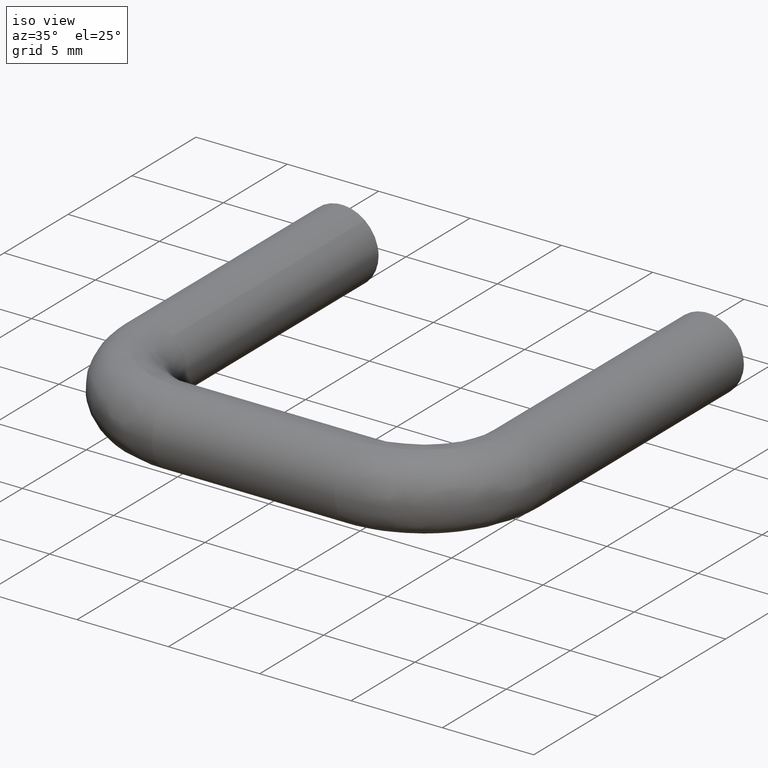
[diagram: clean part render]
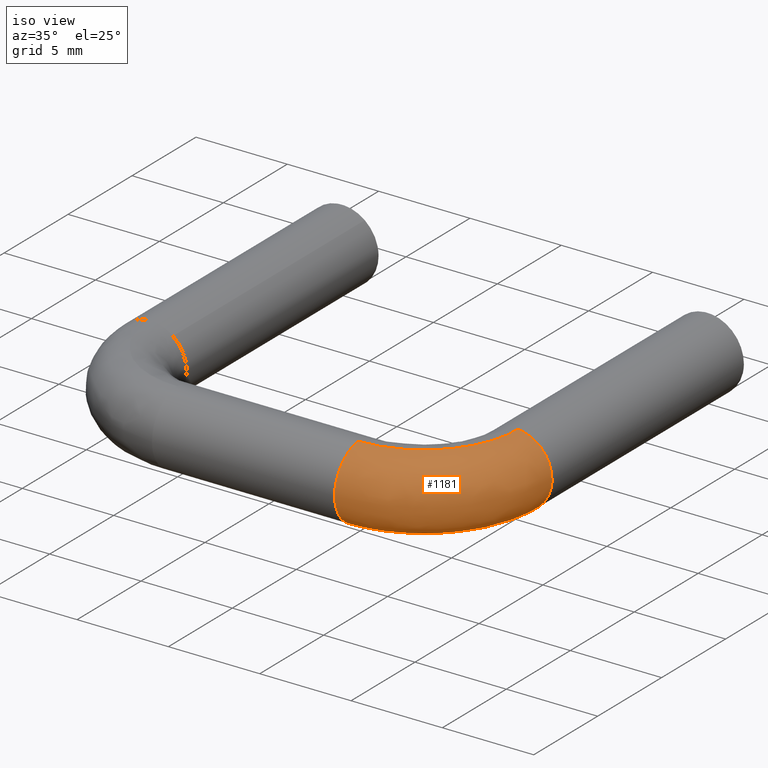
[diagram: same view with one face highlighted and labeled with its STEP entity id]
A machine part, iso view. The second image highlights one B-rep face of the part: STEP entity #1181.
In plain terms, the highlighted face is a freeform B-spline surface patch.
Its self-contained STEP definition (entity closure, byte-faithful):
#426=CARTESIAN_POINT('',(19.974867920034221,-15.000000000080220,-1.999842088405130));
#427=VERTEX_POINT('',#426);
#428=CARTESIAN_POINT('',(21.245028317143941,-15.0,-1.565217074245048));
#429=VERTEX_POINT('',#428);
#430=CARTESIAN_POINT('',(19.974867920034217,-15.000000000080220,-1.999842088405130));
#431=CARTESIAN_POINT('',(19.987433463817126,-15.000000000000005,-2.0));
#432=CARTESIAN_POINT('',(20.0,-15.0,-2.0));
#433=CARTESIAN_POINT('',(20.698430581485816,-15.000000000000004,-2.000000000000000));
#434=CARTESIAN_POINT('',(21.245028317143937,-15.000000000000002,-1.565217074245048));
#442=(BOUNDED_CURVE()B_SPLINE_CURVE(2,(#430,#431,#432,#433,#434),.UNSPECIFIED.,.F.,.U.)B_SPLINE_CURVE_WITH_KNOTS((3,2,3),(0.247784295886715,0.250000000000000,0.357863784922316),.UNSPECIFIED.)CURVE()GEOMETRIC_REPRESENTATION_ITEM()RATIONAL_B_SPLINE_CURVE((0.994854295563426,0.997404141161287,1.0,0.873629715362804,0.856305648347035))REPRESENTATION_ITEM(''));
#443=EDGE_CURVE('',#427,#429,#442,.T.);
#540=CARTESIAN_POINT('',(22.0,-15.0,0.0));
#541=VERTEX_POINT('',#540);
#542=CARTESIAN_POINT('',(21.245028317143937,-15.000000000000002,-1.565217074245048));
#543=CARTESIAN_POINT('',(21.999999999999996,-14.999999999999995,-0.964686234616793));
#544=CARTESIAN_POINT('',(22.0,-15.0,0.0));
#552=(BOUNDED_CURVE()B_SPLINE_CURVE(2,(#542,#543,#544),.UNSPECIFIED.,.F.,.U.)B_SPLINE_CURVE_WITH_KNOTS((3,3),(0.357863784922316,0.500000000000000),.UNSPECIFIED.)CURVE()GEOMETRIC_REPRESENTATION_ITEM()RATIONAL_B_SPLINE_CURVE((0.856305648347035,0.833477065823744,1.0))REPRESENTATION_ITEM(''));
#553=EDGE_CURVE('',#429,#541,#552,.T.);
#587=CARTESIAN_POINT('',(20.139466503375111,-15.000000000051781,1.995131347665190));
#588=VERTEX_POINT('',#587);
#604=CARTESIAN_POINT('',(22.0,-15.0,0.0));
#605=CARTESIAN_POINT('',(22.000000000000004,-15.0,1.865073694113004));
#606=CARTESIAN_POINT('',(20.139466503375104,-15.000000000051783,1.995131347665191));
#614=(BOUNDED_CURVE()B_SPLINE_CURVE(2,(#604,#605,#606),.UNSPECIFIED.,.F.,.U.)B_SPLINE_CURVE_WITH_KNOTS((3,3),(0.500000000000000,0.737833686496478),.UNSPECIFIED.)CURVE()GEOMETRIC_REPRESENTATION_ITEM()RATIONAL_B_SPLINE_CURVE((1.0,0.721360504079108,0.972879876305305))REPRESENTATION_ITEM(''));
#615=EDGE_CURVE('',#541,#588,#614,.T.);
#642=CARTESIAN_POINT('',(15.000000000091649,-19.974867920007419,-1.999842088404793));
#643=VERTEX_POINT('',#642);
#644=CARTESIAN_POINT('',(15.0,-21.489331918750690,-1.334874689171291));
#645=VERTEX_POINT('',#644);
#646=CARTESIAN_POINT('',(15.000000000091646,-19.974867920007423,-1.999842088404794));
#647=CARTESIAN_POINT('',(15.000000000000002,-19.987433463790317,-2.0));
#648=CARTESIAN_POINT('',(15.0,-20.0,-2.0));
#649=CARTESIAN_POINT('',(14.999999999999995,-20.893186420411176,-2.000000000000000));
#650=CARTESIAN_POINT('',(15.000000000000007,-21.489331918750693,-1.334874689171291));
#658=(BOUNDED_CURVE()B_SPLINE_CURVE(2,(#646,#647,#648,#649,#650),.UNSPECIFIED.,.F.,.U.)B_SPLINE_CURVE_WITH_KNOTS((3,2,3),(0.247784295882001,0.250000000000000,0.383246031308614),.UNSPECIFIED.)CURVE()GEOMETRIC_REPRESENTATION_ITEM()RATIONAL_B_SPLINE_CURVE((0.994854295552576,0.997404141155764,1.0,0.843892563983608,0.854190698422797))REPRESENTATION_ITEM(''));
#659=EDGE_CURVE('',#643,#645,#658,.T.);
#771=CARTESIAN_POINT('',(15.0,-22.0,0.0));
#772=VERTEX_POINT('',#771);
#773=CARTESIAN_POINT('',(15.000000000000007,-21.489331918750693,-1.334874689171291));
#774=CARTESIAN_POINT('',(14.999999999999996,-22.000000000000007,-0.765117361107702));
#775=CARTESIAN_POINT('',(15.0,-22.0,0.0));
#783=(BOUNDED_CURVE()B_SPLINE_CURVE(2,(#773,#774,#775),.UNSPECIFIED.,.F.,.U.)B_SPLINE_CURVE_WITH_KNOTS((3,3),(0.383246031308615,0.500000000000000),.UNSPECIFIED.)CURVE()GEOMETRIC_REPRESENTATION_ITEM()RATIONAL_B_SPLINE_CURVE((0.854190698422797,0.863214217202940,1.0))REPRESENTATION_ITEM(''));
#784=EDGE_CURVE('',#645,#772,#783,.T.);
#786=CARTESIAN_POINT('',(15.000000000061659,-20.139466503413331,1.995131347662519));
#787=VERTEX_POINT('',#786);
#788=CARTESIAN_POINT('',(15.0,-22.0,0.0));
#789=CARTESIAN_POINT('',(15.000000000000007,-22.0,1.865073694041360));
#790=CARTESIAN_POINT('',(15.000000000061656,-20.139466503413328,1.995131347662519));
#798=(BOUNDED_CURVE()B_SPLINE_CURVE(2,(#788,#789,#790),.UNSPECIFIED.,.F.,.U.)B_SPLINE_CURVE_WITH_KNOTS((3,3),(0.500000000000000,0.737833686489888),.UNSPECIFIED.)CURVE()GEOMETRIC_REPRESENTATION_ITEM()RATIONAL_B_SPLINE_CURVE((1.0,0.721360504086829,0.972879876291366))REPRESENTATION_ITEM(''));
#799=EDGE_CURVE('',#772,#787,#798,.T.);
#1110=CARTESIAN_POINT('',(15.000000000091644,-19.974867920007419,-1.999842088404794));
#1111=CARTESIAN_POINT('',(19.974867920072850,-19.974867920050009,-1.999842088407631));
#1112=CARTESIAN_POINT('',(19.974867920034228,-15.000000000080217,-1.999842088405130));
#1120=(BOUNDED_CURVE()B_SPLINE_CURVE(2,(#1110,#1111,#1112),.UNSPECIFIED.,.F.,.U.)B_SPLINE_CURVE_WITH_KNOTS((3,3),(-1.734750791620118,-0.265249208375109),.UNSPECIFIED.)CURVE()GEOMETRIC_REPRESENTATION_ITEM()RATIONAL_B_SPLINE_CURVE((0.889029723562874,0.628638946230026,0.889029723564566))REPRESENTATION_ITEM(''));
#1121=EDGE_CURVE('',#643,#427,#1120,.T.);
#1126=CARTESIAN_POINT('',(15.000000000061656,-20.139466503413328,1.995131347662519));
#1127=CARTESIAN_POINT('',(20.139466503047316,-20.139466503027563,1.995131347680863));
#1128=CARTESIAN_POINT('',(20.139466503375107,-15.000000000051781,1.995131347665191));
#1136=(BOUNDED_CURVE()B_SPLINE_CURVE(2,(#1126,#1127,#1128),.UNSPECIFIED.,.F.,.U.)B_SPLINE_CURVE_WITH_KNOTS((3,3),(-1.734750791633468,-0.265249208362536),.UNSPECIFIED.)CURVE()GEOMETRIC_REPRESENTATION_ITEM()RATIONAL_B_SPLINE_CURVE((0.869031711866623,0.614498216541095,0.869031711868007))REPRESENTATION_ITEM(''));
#1137=EDGE_CURVE('',#787,#588,#1136,.T.);
#1142=CARTESIAN_POINT('',(14.656021217743410,-19.934720435218058,-1.999488033019797));
#1143=CARTESIAN_POINT('',(20.330247214529276,-20.330247066208827,-1.999488033019798));
#1144=CARTESIAN_POINT('',(19.934720425646432,-14.656021080428960,-1.999488033019796));
#1145=CARTESIAN_POINT('',(14.655044537632609,-19.948731890430039,-1.999664542692802));
#1146=CARTESIAN_POINT('',(20.345381713250244,-20.345381564508664,-1.999664542692803));
#1147=CARTESIAN_POINT('',(19.948731880831232,-14.655044399928274,-1.999664542692802));
#1148=CARTESIAN_POINT('',(14.514998910677473,-21.957826790600048,-2.024974168174337));
#1149=CARTESIAN_POINT('',(22.515509207997166,-22.515508998869205,-2.024974168174337));
#1150=CARTESIAN_POINT('',(21.957826777104334,-14.514998717067693,-2.024974168174337));
#1151=CARTESIAN_POINT('',(14.513251298798460,-21.982898034807718,-0.025132079766705));
#1152=CARTESIAN_POINT('',(22.542589957830316,-22.542589747948806,-0.025132079766705));
#1153=CARTESIAN_POINT('',(21.982898021263352,-14.513251104491044,-0.025132079766705));
#1154=CARTESIAN_POINT('',(14.511600935508904,-22.006574150517817,1.863425675679395));
#1155=CARTESIAN_POINT('',(22.568163757090350,-22.568163546497214,1.863425675679394));
#1156=CARTESIAN_POINT('',(22.006574136927533,-14.511600740542663,1.863425675679395));
#1157=CARTESIAN_POINT('',(14.643619401793485,-20.112636916579117,1.996139616102529));
#1158=CARTESIAN_POINT('',(20.522424024065533,-20.522423870397528,1.996139616102528));
#1159=CARTESIAN_POINT('',(20.112636906662392,-14.643619259528290,1.996139616102529));
#1160=CARTESIAN_POINT('',(14.644616875263736,-20.098327159782581,1.997142344269510));
#1161=CARTESIAN_POINT('',(20.506967314347801,-20.506967161109902,1.997142344269509));
#1162=CARTESIAN_POINT('',(20.098327149893620,-14.644616733396729,1.997142344269509));
#1170=(BOUNDED_SURFACE()B_SPLINE_SURFACE(2,2,((#1142,#1145,#1148,#1151,#1154,#1157,#1160),(#1143,#1146,#1149,#1152,#1155,#1158,#1161),(#1144,#1147,#1150,#1153,#1156,#1159,#1162)),.UNSPECIFIED.,.F.,.F.,.U.)B_SPLINE_SURFACE_WITH_KNOTS((3,3),(3,1,2,1,3),(0.0,12.756329644327010),(0.0,0.033203492437609,3.346911991422368,6.528072150447736,6.561280938012350),.UNSPECIFIED.)GEOMETRIC_REPRESENTATION_ITEM()RATIONAL_B_SPLINE_SURFACE(((0.921720660161944,0.919031377701439,0.647951709431553,0.916342095240933,0.658687324863928,0.898204248037896,0.900678782465020),(0.604856117376403,0.603091343060392,0.425202094466791,0.601326568744382,0.432247073437895,0.589424060412988,0.591047911706113),(0.921720671846993,0.919031389352394,0.647951717645915,0.916342106857795,0.658687333214390,0.898204259424817,0.900678793883311)))REPRESENTATION_ITEM('')SURFACE());
#1171=ORIENTED_EDGE('',*,*,#615,.T.);
#1172=ORIENTED_EDGE('',*,*,#1137,.F.);
#1173=ORIENTED_EDGE('',*,*,#799,.F.);
#1174=ORIENTED_EDGE('',*,*,#784,.F.);
#1175=ORIENTED_EDGE('',*,*,#659,.F.);
#1176=ORIENTED_EDGE('',*,*,#1121,.T.);
#1177=ORIENTED_EDGE('',*,*,#443,.T.);
#1178=ORIENTED_EDGE('',*,*,#553,.T.);
#1179=EDGE_LOOP('',(#1171,#1172,#1173,#1174,#1175,#1176,#1177,#1178));
#1180=FACE_OUTER_BOUND('',#1179,.T.);
#1181=ADVANCED_FACE('',(#1180),#1170,.T.);